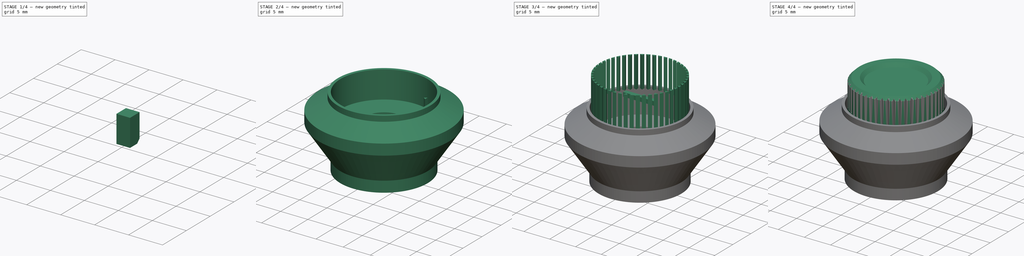
[diagram: build sequence overview — one tinted view per stage of 4, left to right]
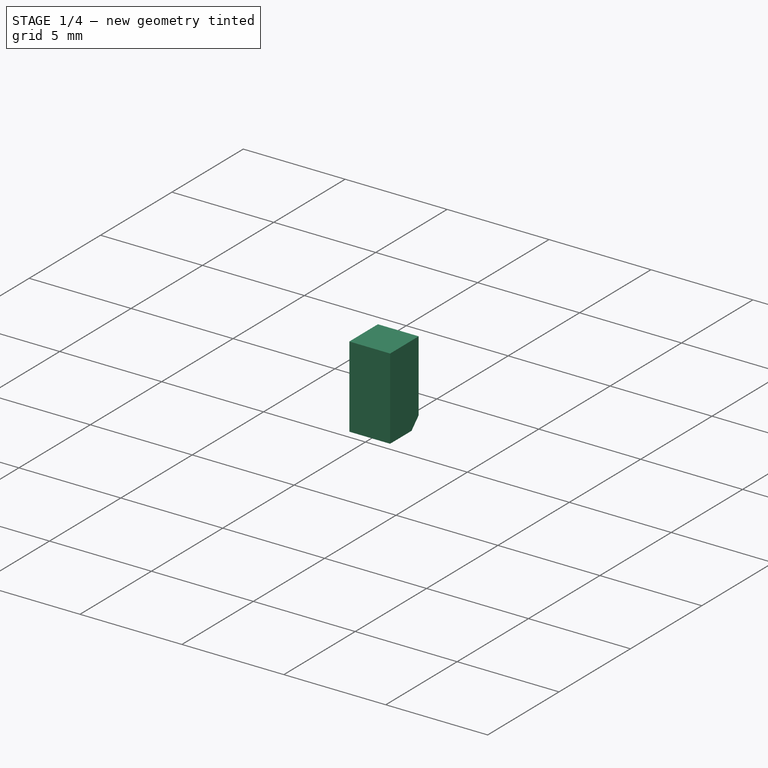
[diagram: stage 1 of 4 — iso view after this stage's code; geometry added in this stage tinted green]
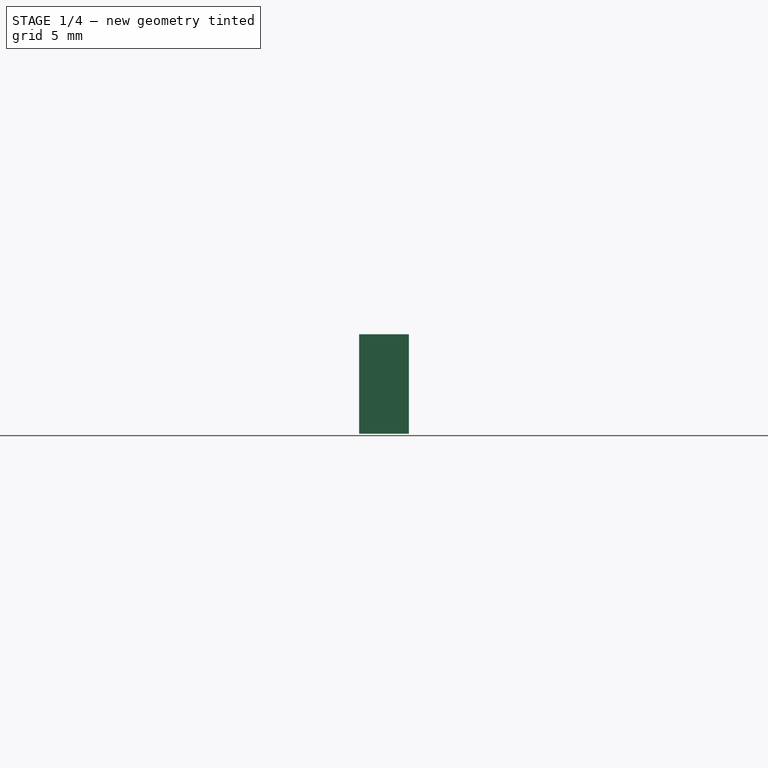
[diagram: stage 1 of 4 — front view after this stage's code; geometry added in this stage tinted green]
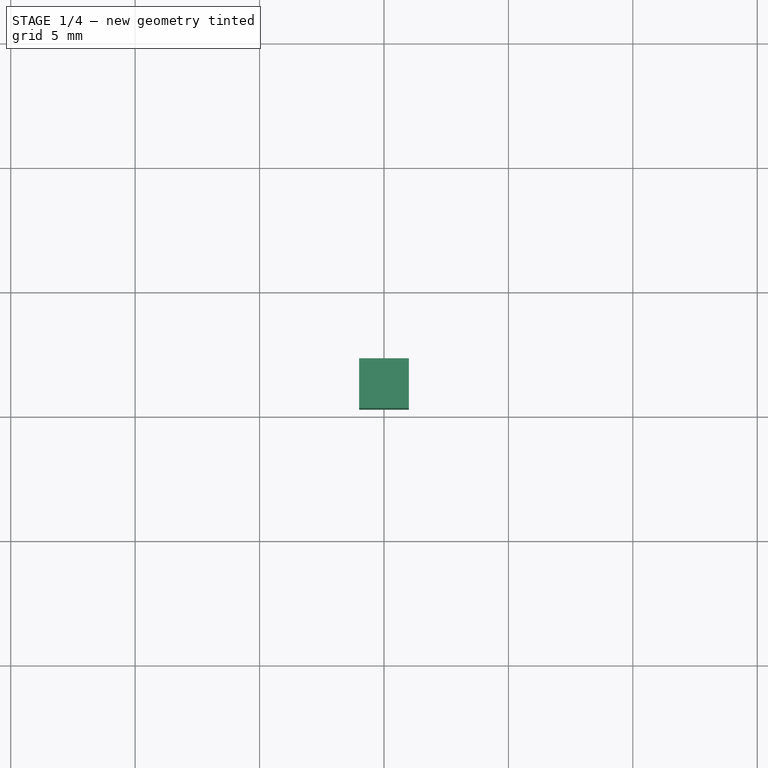
[diagram: stage 1 of 4 — top view after this stage's code; geometry added in this stage tinted green]
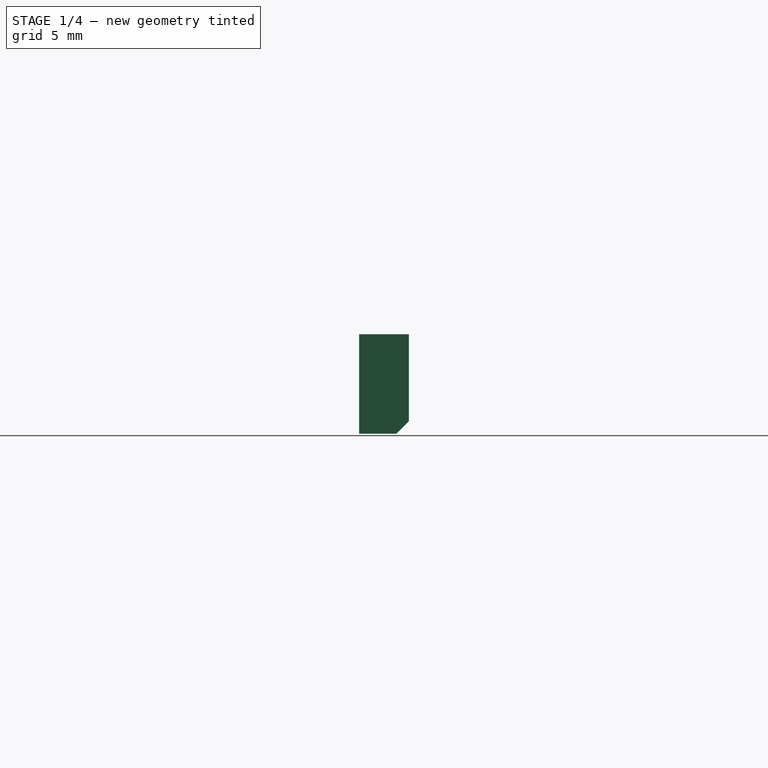
[diagram: stage 1 of 4 — right view after this stage's code; geometry added in this stage tinted green]
FCSTD DOCUMENT  (FreeCAD 0.16R6706 (Git))
Label: rheostat_knobs
License: All rights reserved
LicenseURL: http://en.wikipedia.org/wiki/All_rights_reserved
objects: Sketcher::SketchObject×4, PartDesign::Revolution×2, Part::FeaturePython×2, Part::MultiFuse×2, PartDesign::Pad×2, App::DocumentObjectGroup×2, Part::Box×1, Part::Chamfer×1, Part::Cut×1
note: 19 computed .brp shape members not serialized (recipe doc carries the construction recipe); baked Part::Feature solids carry a one-line shape summary decoded from their .brp

FEATURE [Part::Box] Box  label="Cube (anti-slip)"
  Height = 4
  Length = 2
  Placement = pos=(-1,2.7,-4.2) rot=(0,0,1;0rad)
  Width = 2
  expr: Placement.Base.y = 5.4 / 2
FEATURE [Part::Chamfer] Chamfer  label="Chamfer (anti-slip)"
  Base = -> Box
  Edges = 1 edges r=0.5: [Edge9]
FEATURE [Part::FeaturePython] Clone  label="Clone of Chamfer"  # Draft clone (typed FeaturePython)
  Objects = -> [Chamfer]
  Placement = pos=(0,0,0) rot=(0,0,1;3.14159rad)
  Scale = (1,1,1)
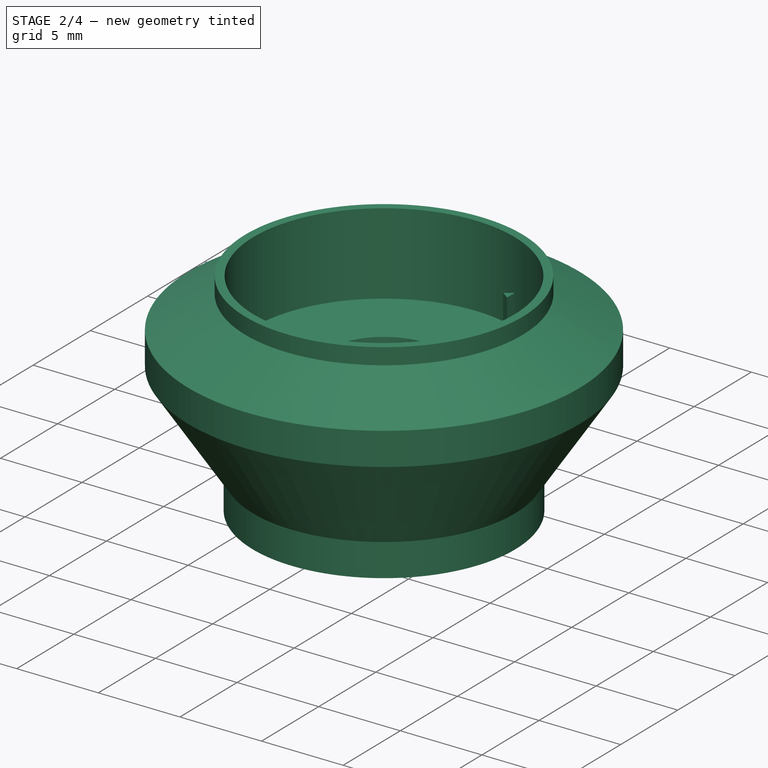
[diagram: stage 2 of 4 — iso view after this stage's code; geometry added in this stage tinted green]
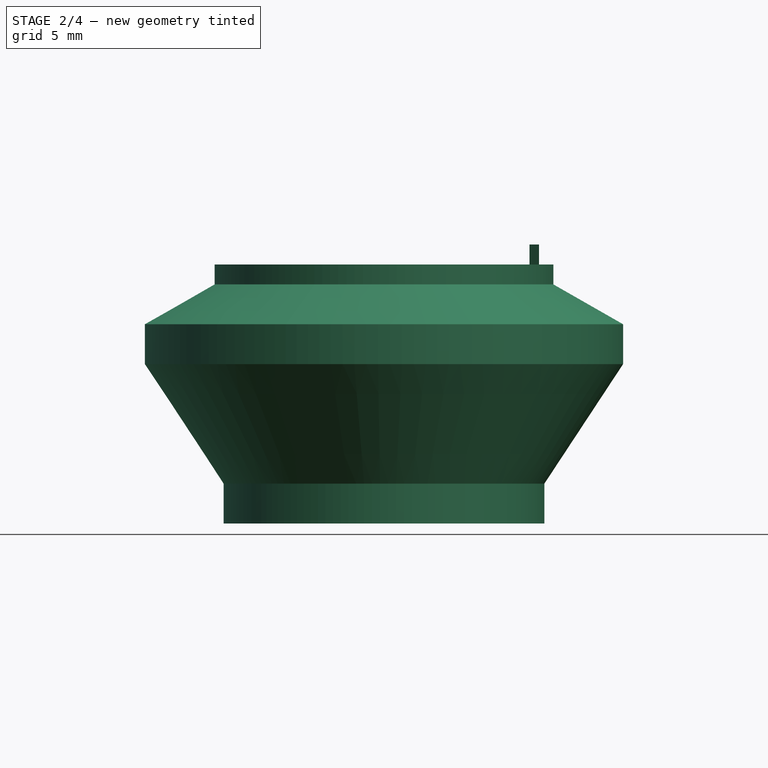
[diagram: stage 2 of 4 — front view after this stage's code; geometry added in this stage tinted green]
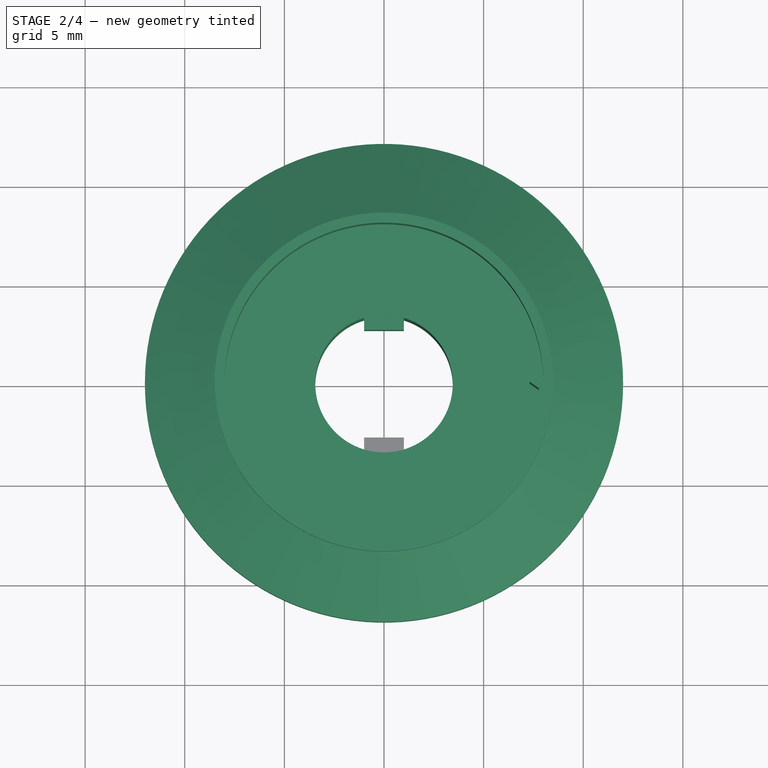
[diagram: stage 2 of 4 — top view after this stage's code; geometry added in this stage tinted green]
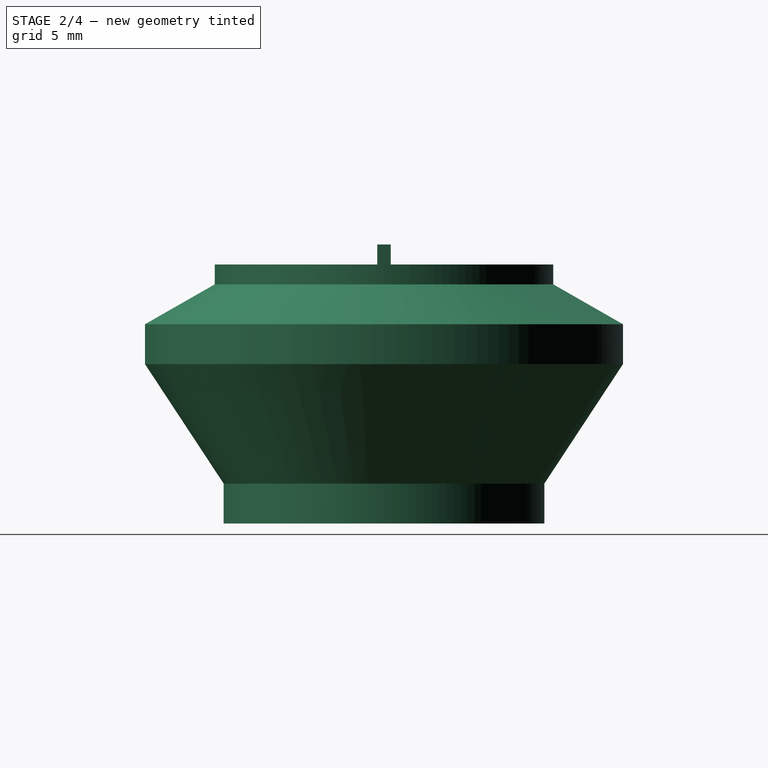
[diagram: stage 2 of 4 — right view after this stage's code; geometry added in this stage tinted green]
FEATURE [Sketcher::SketchObject] Sketch  label="Sketch (outer profile)"
  Placement = pos=(0,0,0) rot=(1,0,0;1.5708rad)
  sketch-geometry (12):
    g0: LineSegment StartX=12 StartY=2 StartZ=0 EndX=12 EndY=0 EndZ=0
    g1: LineSegment StartX=8 StartY=4 StartZ=0 EndX=8 EndY=0 EndZ=0
    g2: LineSegment StartX=8.5 StartY=4 StartZ=0 EndX=12 EndY=2 EndZ=0
    g3: LineSegment StartX=8 StartY=4 StartZ=0 EndX=8 EndY=5 EndZ=0
    g4: LineSegment StartX=8 StartY=5 StartZ=0 EndX=8.5 EndY=5 EndZ=0
    g5: LineSegment StartX=8.5 StartY=5 StartZ=0 EndX=8.5 EndY=4 EndZ=0
    g6: LineSegment StartX=3.45 StartY=0 StartZ=0 EndX=3.45 EndY=-8 EndZ=0
    g7: LineSegment StartX=3.45 StartY=-8 StartZ=0 EndX=8.04948 EndY=-8 EndZ=0
    g8: LineSegment StartX=8.04948 StartY=-8 StartZ=0 EndX=8.04948 EndY=-6 EndZ=0
    g9: LineSegment StartX=8.04948 StartY=-6 StartZ=0 EndX=12 EndY=0 EndZ=0
    g10: LineSegment StartX=3.45 StartY=0 StartZ=0 EndX=8 EndY=0 EndZ=0
    g11: LineSegment [constr] StartX=8 StartY=4 StartZ=0 EndX=8.5 EndY=4 EndZ=0
  constraints (34):
    c: PointOnObject(g0,g-1)
    c: Vertical(g0)
    c: Vertical(g1)
    c: DistanceX(g-1,g6) = 3.45
    c: DistanceY(g0,g0) = 2
    c: Coincident(g2,g0)
    c: DistanceX(g-1,g1) = 8
    c: DistanceY(g-1,g1) = 4
    c: PointOnObject(g6,g-1)
    c: Coincident(g3,g1)
    c: Vertical(g3)
    c: Coincident(g4,g3)
    c: Horizontal(g4)
    c: Coincident(g5,g4)
    c: Vertical(g5)
    c: Vertical(g6)
    c: Coincident(g7,g6)
    c: Horizontal(g7)
    c: Vertical(g8)
    c: Coincident(g9,g8)
    c: Coincident(g9,g0)
    c: DistanceY(g8,g8) = 2
    c: Coincident(g7,g8)
    c: DistanceY(g6,g6) = 8
    c: Coincident(g10,g6)
    c: Coincident(g10,g1)
    c: Horizontal(g10)
    c: DistanceX(g4,g4) = 0.5
    c: Coincident(g11,g1)
    c: Coincident(g11,g5)
    c: Horizontal(g11)
    c: DistanceY(g3,g3) = 1
    c: Coincident(g2,g5)
    c: DistanceX(g-1,g0) = 12
FEATURE [PartDesign::Revolution] Revolution  label="Revolution (outer)"
  Angle = 360
  Axis = (0,0,1)
  Base = (0,0,0)
  Placement = pos=(0,0,0) rot=(1,0,0;1.5708rad)
  ReferenceAxis = -> Sketch [V_Axis]
  Reversed = true
  Sketch = -> Sketch
FEATURE [Part::MultiFuse] Fusion  label="Fusion (outer)"
  Shapes = -> [Clone,Chamfer,Revolution]
FEATURE [Sketcher::SketchObject] Sketch003  label="Sketch (inner grip)"
  sketch-geometry (3):
    g0: LineSegment StartX=7.78235 StartY=0.337746 StartZ=0 EndX=7.3 EndY=0 EndZ=0
    g1: LineSegment StartX=7.3 StartY=0 StartZ=0 EndX=7.78235 EndY=-0.337746 EndZ=0
    g2: LineSegment StartX=7.78235 StartY=0.337746 StartZ=0 EndX=7.78235 EndY=-0.337746 EndZ=0
  constraints (8):
    c: PointOnObject(g0,g-1)
    c: Coincident(g1,g0)
    c: Coincident(g2,g0)
    c: Coincident(g2,g1)
    c: Vertical(g2)
    c: Equal(g0,g1)
    c: Angle(g1,g0) = 1.22173
    c: DistanceX(g-1,g0) = 7.3
FEATURE [PartDesign::Pad] Pad001  label="Pad (inner grip)"
  Length = 6
  Length2 = 100
  Sketch = -> Sketch003
  Type = 0
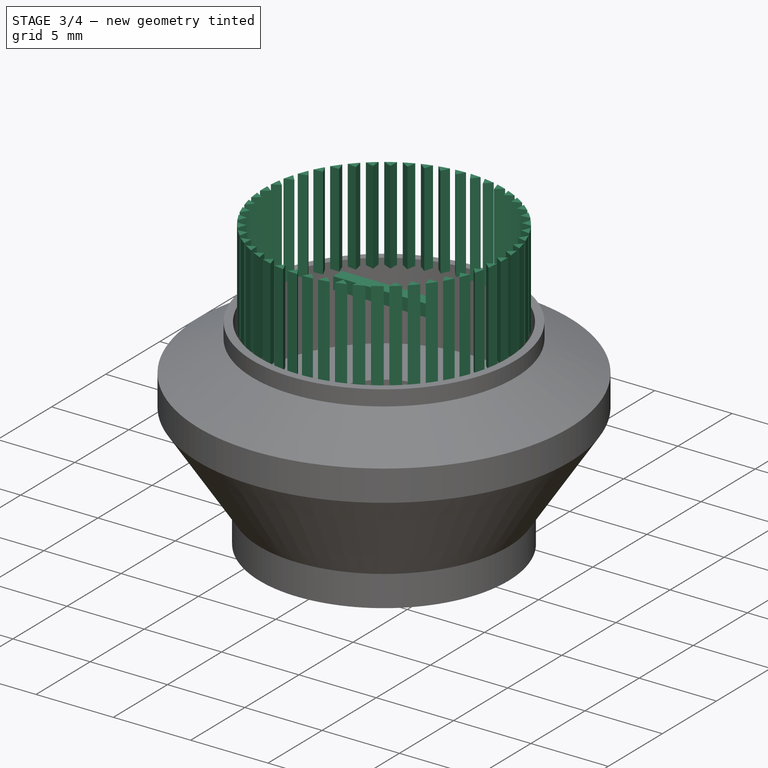
[diagram: stage 3 of 4 — iso view after this stage's code; geometry added in this stage tinted green]
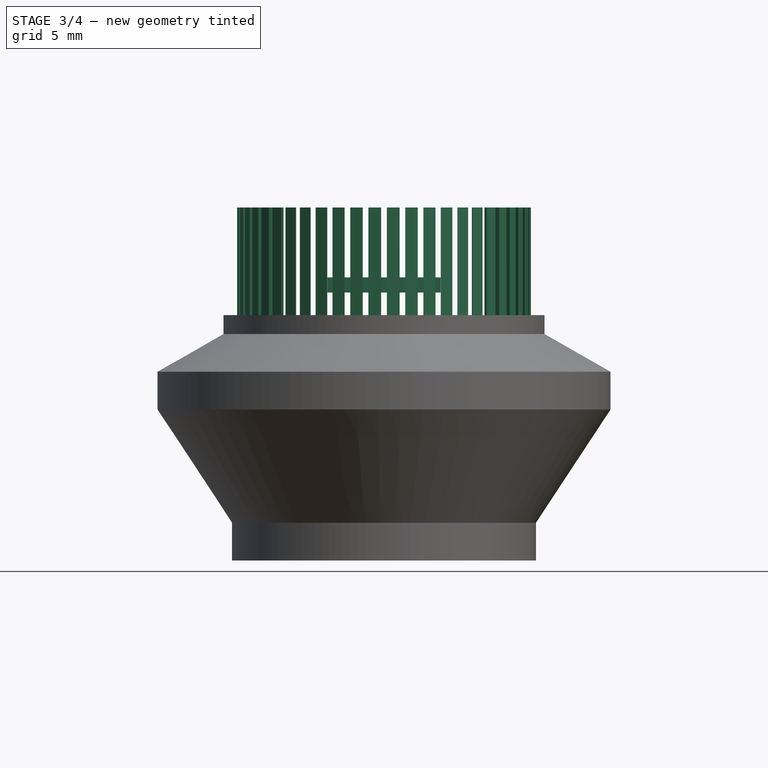
[diagram: stage 3 of 4 — front view after this stage's code; geometry added in this stage tinted green]
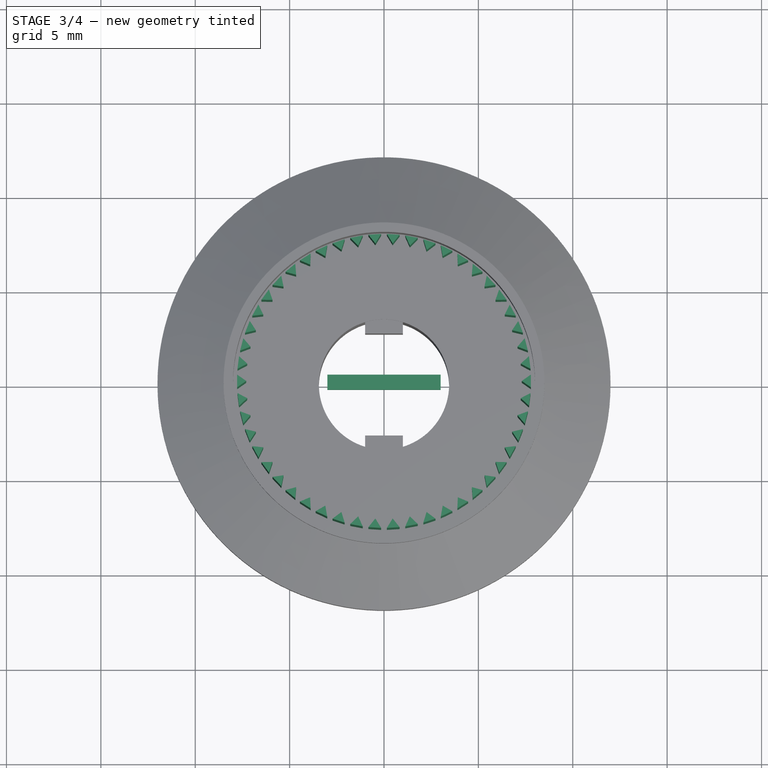
[diagram: stage 3 of 4 — top view after this stage's code; geometry added in this stage tinted green]
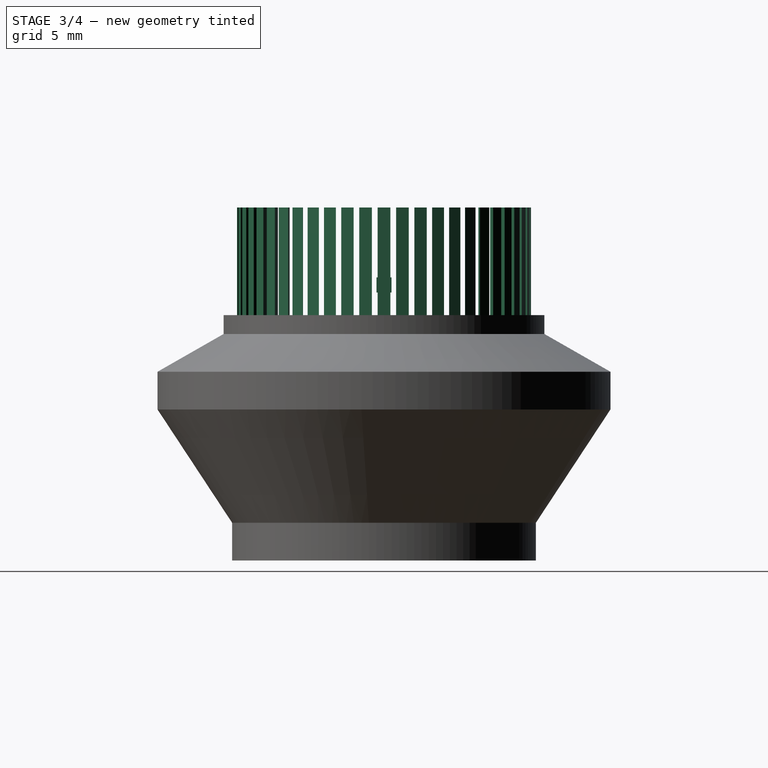
[diagram: stage 3 of 4 — right view after this stage's code; geometry added in this stage tinted green]
FEATURE [Sketcher::SketchObject] Sketch002  label="Sketch (inner anti-slip)"
  Placement = pos=(0,0,7) rot=(0,0,1;0rad)
  sketch-geometry (6):
    g0: LineSegment StartX=-3 StartY=0.4 StartZ=0 EndX=3 EndY=0.4 EndZ=0
    g1: LineSegment StartX=3 StartY=0.4 StartZ=0 EndX=3 EndY=-0.4 EndZ=0
    g2: LineSegment StartX=3 StartY=-0.4 StartZ=0 EndX=-3 EndY=-0.4 EndZ=0
    g3: LineSegment StartX=-3 StartY=-0.4 StartZ=0 EndX=-3 EndY=0.4 EndZ=0
    g4: LineSegment [constr] StartX=-3 StartY=0.4 StartZ=0 EndX=0 EndY=0 EndZ=0
    g5: LineSegment [constr] StartX=0 StartY=0 StartZ=0 EndX=3 EndY=-0.4 EndZ=0
  constraints (16):
    c: Coincident(g0,g1)
    c: Coincident(g1,g2)
    c: Coincident(g2,g3)
    c: Coincident(g3,g0)
    c: Horizontal(g0)
    c: Horizontal(g2)
    c: Vertical(g1)
    c: Vertical(g3)
    c: DistanceY(g1,g1) = 0.8
    c: DistanceX(g0,g0) = 6
    c: Coincident(g4,g0)
    c: Coincident(g4,g-1)
    c: Coincident(g5,g-1)
    c: Coincident(g5,g1)
    c: Equal(g5,g4)
    c: Parallel(g4,g5)
FEATURE [PartDesign::Pad] Pad  label="Pad (inner anit-slip)"
  Length = 0.8
  Length2 = 100
  Placement = pos=(0,0,7) rot=(0,0,1;0rad)
  Reversed = true
  Sketch = -> Sketch002
  Type = 0
FEATURE [Part::FeaturePython] Array  label="Array (inner grip)"  # Draft array (typed FeaturePython)
  Angle = 360
  ArrayType = 1
  Axis = (0,0,1)
  Base = -> Pad001
  Center = (0,0,0)
  Fuse = false
  IntervalAxis = (0,0,0)
  IntervalX = (1,0,0)
  IntervalY = (0,1,0)
  IntervalZ = (0,0,0)
  NumberPolar = 50
  NumberX = 2
  NumberY = 2
  NumberZ = 1
  Placement = pos=(0,0,4.7) rot=(0,0,1;0rad)
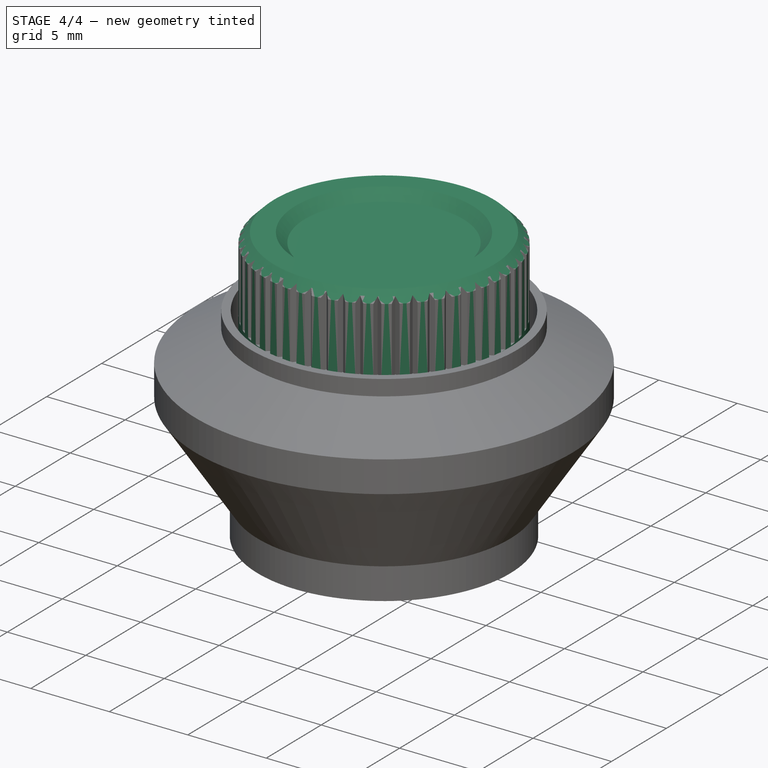
[diagram: stage 4 of 4 — iso view after this stage's code; geometry added in this stage tinted green]
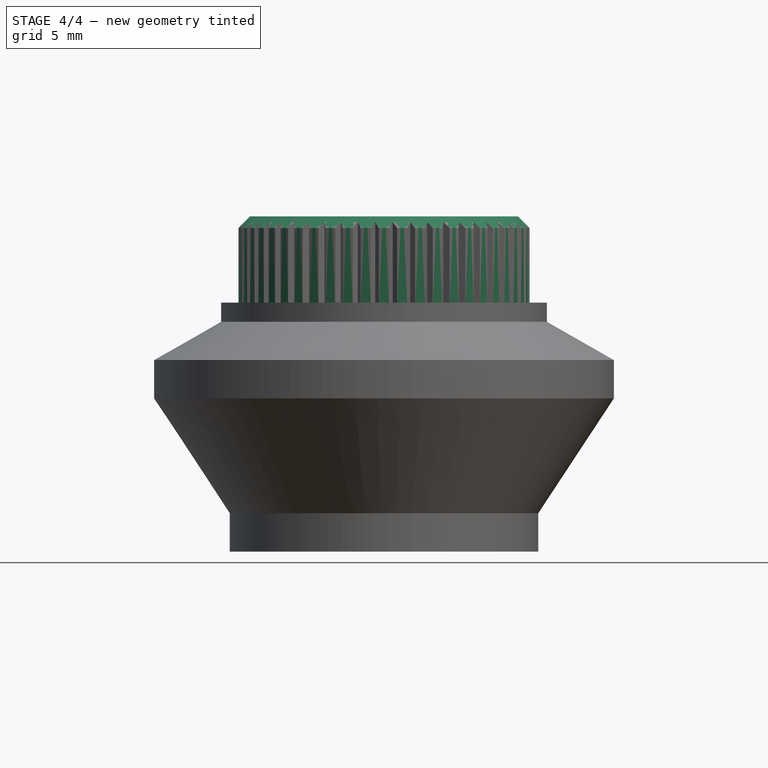
[diagram: stage 4 of 4 — front view after this stage's code; geometry added in this stage tinted green]
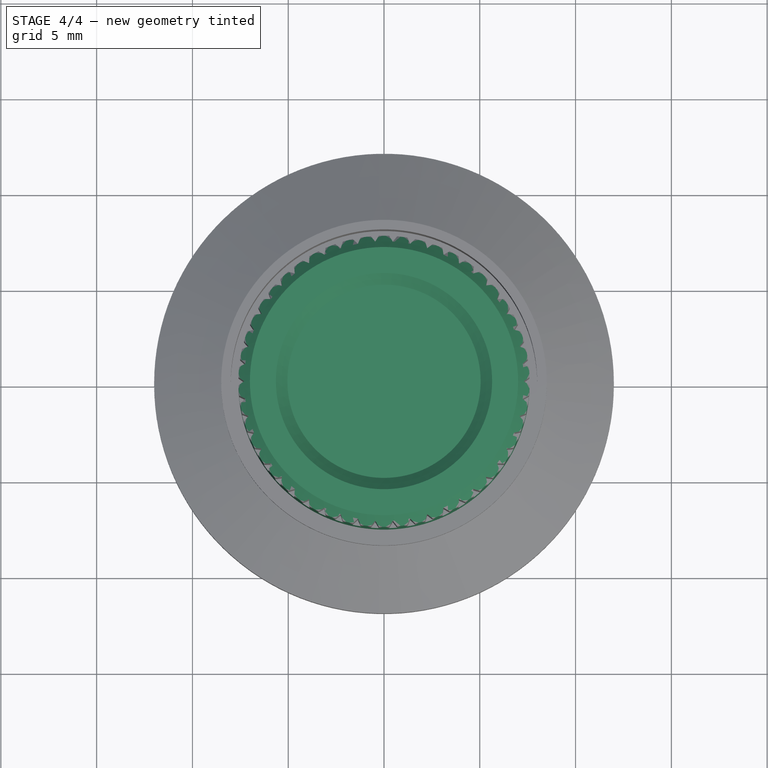
[diagram: stage 4 of 4 — top view after this stage's code; geometry added in this stage tinted green]
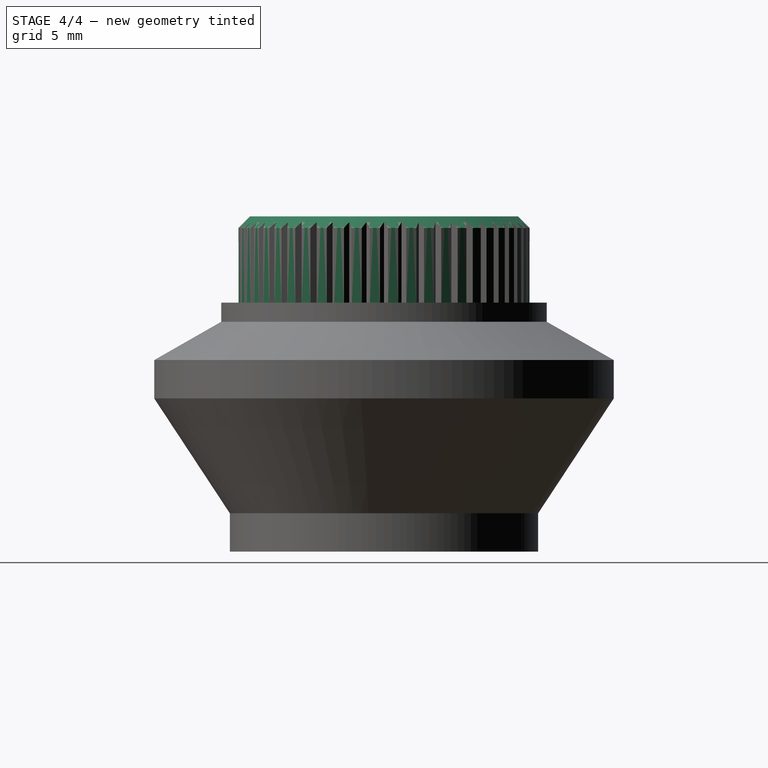
[diagram: stage 4 of 4 — right view after this stage's code; geometry added in this stage tinted green]
FEATURE [Sketcher::SketchObject] Sketch001  label="Sketch (inner profile)"
  Placement = pos=(0,0,0) rot=(1,0,0;1.5708rad)
  sketch-geometry (12):
    g0: LineSegment StartX=2.55 StartY=0.5 StartZ=0 EndX=7.6 EndY=0.5 EndZ=0
    g1: LineSegment StartX=7.6 StartY=0.5 StartZ=0 EndX=7.6 EndY=8.9 EndZ=0
    g2: LineSegment StartX=7 StartY=9.5 StartZ=0 EndX=5.64411 EndY=9.5 EndZ=0
    g3: LineSegment StartX=5.64411 StartY=9.5 StartZ=0 EndX=5.04411 EndY=8.9 EndZ=0
    g4: LineSegment StartX=5.04411 StartY=8.9 StartZ=0 EndX=0 EndY=8.9 EndZ=0
    g5: LineSegment StartX=2.57 StartY=7 StartZ=0 EndX=0 EndY=7 EndZ=0
    g6: LineSegment StartX=0 StartY=7 StartZ=0 EndX=0 EndY=8.9 EndZ=0
    g7: LineSegment StartX=7 StartY=9.5 StartZ=0 EndX=7.6 EndY=8.9 EndZ=0
    g8: LineSegment StartX=2.57 StartY=7 StartZ=0 EndX=2.82 EndY=7 EndZ=0
    g9: LineSegment StartX=2.82 StartY=7 StartZ=0 EndX=2.82 EndY=6 EndZ=0
    g10: LineSegment StartX=2.55 StartY=0.5 StartZ=0 EndX=2.55 EndY=6 EndZ=0
    g11: LineSegment StartX=2.55 StartY=6 StartZ=0 EndX=2.82 EndY=6 EndZ=0
  constraints (34):
    c: Horizontal(g0)
    c: Coincident(g1,g0)
    c: Vertical(g1)
    c: Coincident(g4,g3)
    c: Horizontal(g4)
    c: Horizontal(g5)
    c: Coincident(g6,g5)
    c: Vertical(g6)
    c: Horizontal(g2)
    c: Coincident(g4,g6)
    c: PointOnObject(g4,g-2)
    c: DistanceX(g-1,g0) = 7.6
    c: DistanceX(g0) = 2.55
    c: DistanceY(g0,g5) = 6.5
    c: DistanceY(g4,g2) = 0.6
    c: Angle(g3,g4) = 2.35619
    c: DistanceY(g-1,g5) = 7
    c: DistanceY(g0,g2) = 9
    c: Coincident(g2,g3)
    c: Coincident(g7,g2)
    c: Coincident(g7,g1)
    c: Angle(g7,g1) = 2.35619
    c: DistanceY(g1,g2) = 0.6
    c: Horizontal(g8)
    c: Coincident(g9,g8)
    c: Vertical(g9)
    c: Coincident(g10,g0)
    c: Vertical(g10)
    c: Coincident(g11,g10)
    c: Coincident(g11,g9)
    c: Horizontal(g11)
    c: DistanceX(g8,g8) = 0.25
    c: DistanceY(g9,g9) = 1
    c: Coincident(g8,g5)
FEATURE [PartDesign::Revolution] Revolution001  label="Revolution (inner)"
  Angle = 360
  Axis = (0,0,1)
  Base = (0,0,0)
  Placement = pos=(0,0,0) rot=(1,0,0;1.5708rad)
  ReferenceAxis = -> Sketch001 [V_Axis]
  Reversed = true
  Sketch = -> Sketch001
FEATURE [Part::MultiFuse] Fusion001  label="Fusion (inner)"
  Shapes = -> [Pad,Revolution001]
FEATURE [Part::Cut] Cut  label="Cut (inner)"
  Base = -> Fusion001
  Tool = -> Array
FEATURE [App::DocumentObjectGroup] Group  label="Inner Knob"
  Group = -> [Cut]
FEATURE [App::DocumentObjectGroup] Group001  label="Outer Knob"
  Group = -> [Fusion]
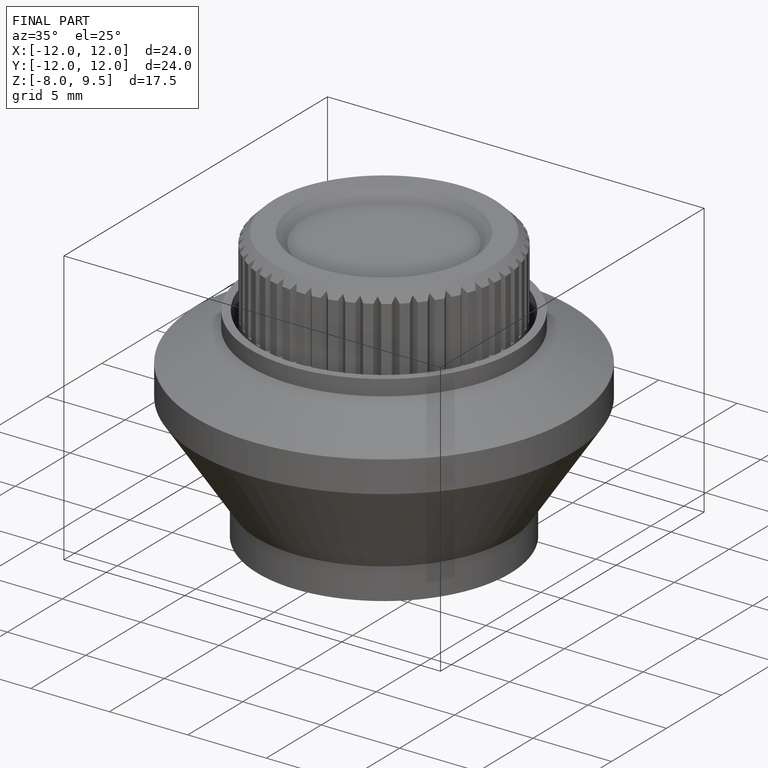
[diagram: finished part — iso view with bounding-box wireframe]
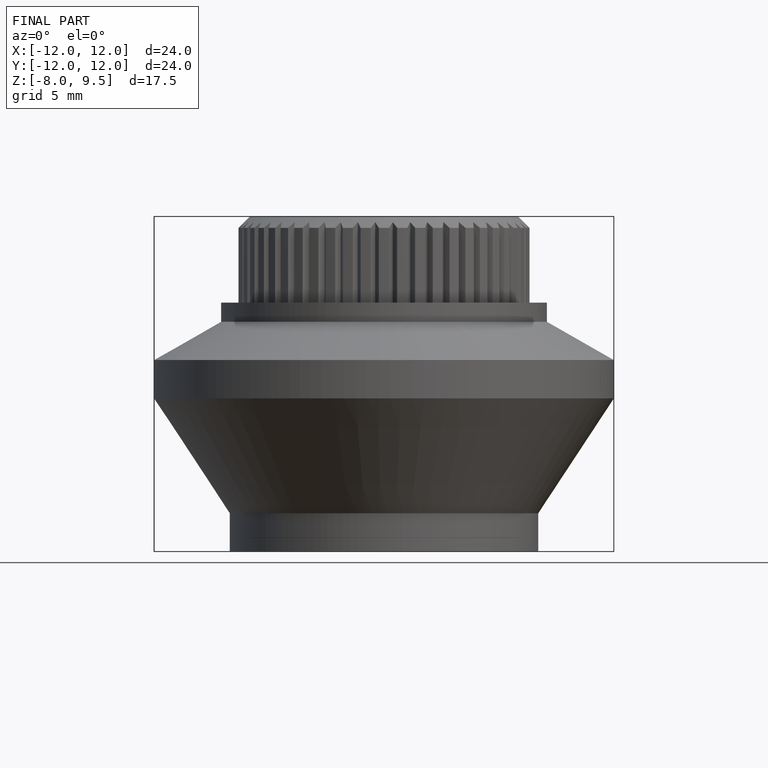
[diagram: finished part — front view with bounding-box wireframe]
